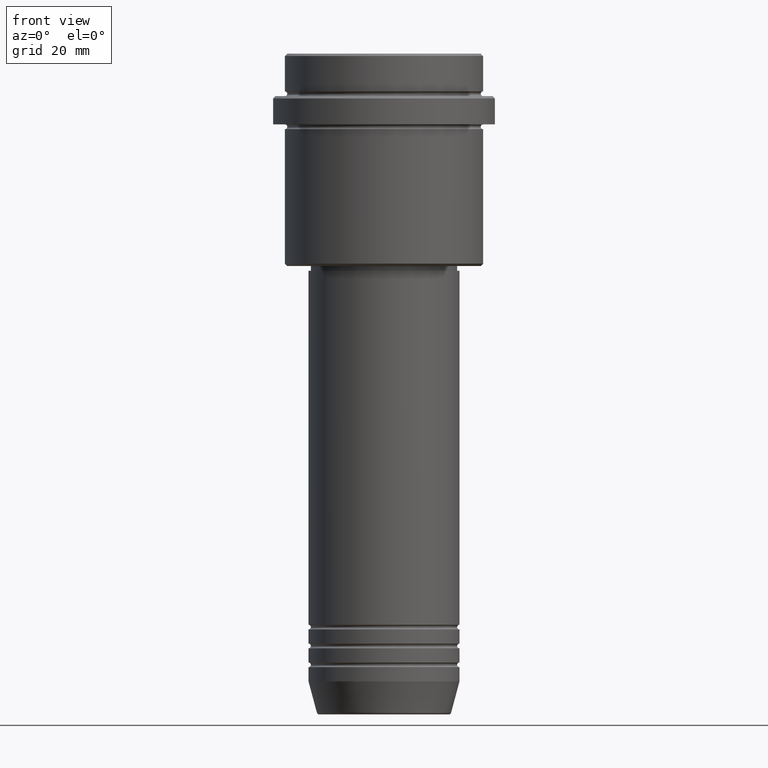
[diagram: clean part render]
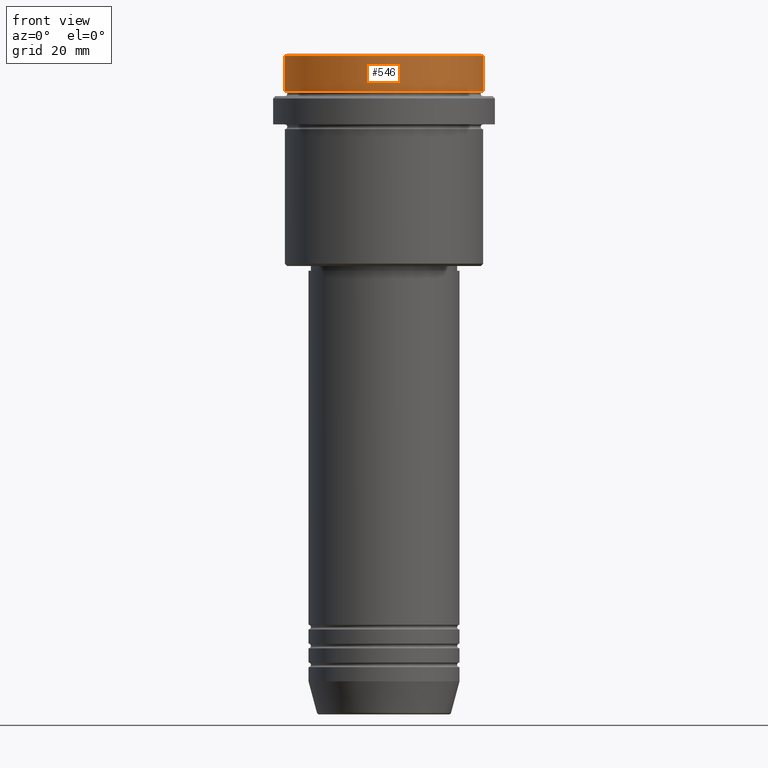
[diagram: same view with one face highlighted and labeled with its STEP entity id]
A machine part, front view. The second image highlights one B-rep face of the part: STEP entity #546.
In plain terms, the highlighted cylindrical surface (partial cylindrical patch) has radius 21 mm, axis along (-0, -0, 1).
Its self-contained STEP definition (entity closure, byte-faithful):
#50 = CIRCLE ( 'NONE', #880, 21.00000000000000000 ) ;
#131 = VERTEX_POINT ( 'NONE', #353 ) ;
#136 = CARTESIAN_POINT ( 'NONE',  ( -21.00000000000000000, 2.571758278209441661E-15, -0.5000000000000247580 ) ) ;
#191 = VERTEX_POINT ( 'NONE', #136 ) ;
#197 = DIRECTION ( 'NONE',  ( -0.000000000000000000, -0.000000000000000000, 1.000000000000000000 ) ) ;
#205 = ORIENTED_EDGE ( 'NONE', *, *, #648, .T. ) ;
#258 = LINE ( 'NONE', #612, #767 ) ;
#301 = EDGE_CURVE ( 'NONE', #131, #1371, #50, .T. ) ;
#330 = DIRECTION ( 'NONE',  ( 1.000000000000000000, 0.000000000000000000, 0.000000000000000000 ) ) ;
#353 = CARTESIAN_POINT ( 'NONE',  ( -21.00000000000000000, 2.571758278209441661E-15, -7.999999999999998224 ) ) ;
#359 = EDGE_CURVE ( 'NONE', #131, #191, #810, .T. ) ;
#450 = DIRECTION ( 'NONE',  ( -0.000000000000000000, -0.000000000000000000, 1.000000000000000000 ) ) ;
#452 = CARTESIAN_POINT ( 'NONE',  ( 21.00000000000000000, 0.000000000000000000, -7.999999999999998224 ) ) ;
#507 = DIRECTION ( 'NONE',  ( -0.000000000000000000, -0.000000000000000000, 1.000000000000000000 ) ) ;
#517 = CARTESIAN_POINT ( 'NONE',  ( 0.000000000000000000, 0.000000000000000000, -0.5000000000000247580 ) ) ;
#546 = ADVANCED_FACE ( 'NONE', ( #671 ), #1003, .T. ) ;
#598 = ORIENTED_EDGE ( 'NONE', *, *, #1296, .T. ) ;
#612 = CARTESIAN_POINT ( 'NONE',  ( 21.00000000000000000, 0.000000000000000000, 0.000000000000000000 ) ) ;
#648 = EDGE_CURVE ( 'NONE', #1371, #807, #258, .T. ) ;
#659 = CARTESIAN_POINT ( 'NONE',  ( -21.00000000000000000, 2.571758278209441661E-15, 0.000000000000000000 ) ) ;
#671 = FACE_OUTER_BOUND ( 'NONE', #783, .T. ) ;
#757 = CARTESIAN_POINT ( 'NONE',  ( 0.000000000000000000, 0.000000000000000000, -7.999999999999998224 ) ) ;
#767 = VECTOR ( 'NONE', #507, 1000.000000000000000 ) ;
#775 = DIRECTION ( 'NONE',  ( 1.000000000000000000, 0.000000000000000000, 0.000000000000000000 ) ) ;
#783 = EDGE_LOOP ( 'NONE', ( #1409, #1099, #205, #598 ) ) ;
#807 = VERTEX_POINT ( 'NONE', #1286 ) ;
#810 = LINE ( 'NONE', #659, #1280 ) ;
#840 = AXIS2_PLACEMENT_3D ( 'NONE', #517, #1100, #775 ) ;
#880 = AXIS2_PLACEMENT_3D ( 'NONE', #757, #197, #1080 ) ;
#1003 = CYLINDRICAL_SURFACE ( 'NONE', #1153, 21.00000000000000000 ) ;
#1051 = CIRCLE ( 'NONE', #840, 21.00000000000000000 ) ;
#1080 = DIRECTION ( 'NONE',  ( 1.000000000000000000, 0.000000000000000000, 0.000000000000000000 ) ) ;
#1099 = ORIENTED_EDGE ( 'NONE', *, *, #301, .T. ) ;
#1100 = DIRECTION ( 'NONE',  ( 0.000000000000000000, 0.000000000000000000, -1.000000000000000000 ) ) ;
#1153 = AXIS2_PLACEMENT_3D ( 'NONE', #1417, #450, #330 ) ;
#1280 = VECTOR ( 'NONE', #1377, 1000.000000000000000 ) ;
#1286 = CARTESIAN_POINT ( 'NONE',  ( 21.00000000000000000, 0.000000000000000000, -0.5000000000000247580 ) ) ;
#1296 = EDGE_CURVE ( 'NONE', #807, #191, #1051, .T. ) ;
#1371 = VERTEX_POINT ( 'NONE', #452 ) ;
#1377 = DIRECTION ( 'NONE',  ( -0.000000000000000000, -0.000000000000000000, 1.000000000000000000 ) ) ;
#1409 = ORIENTED_EDGE ( 'NONE', *, *, #359, .F. ) ;
#1417 = CARTESIAN_POINT ( 'NONE',  ( 0.000000000000000000, 0.000000000000000000, 0.000000000000000000 ) ) ;